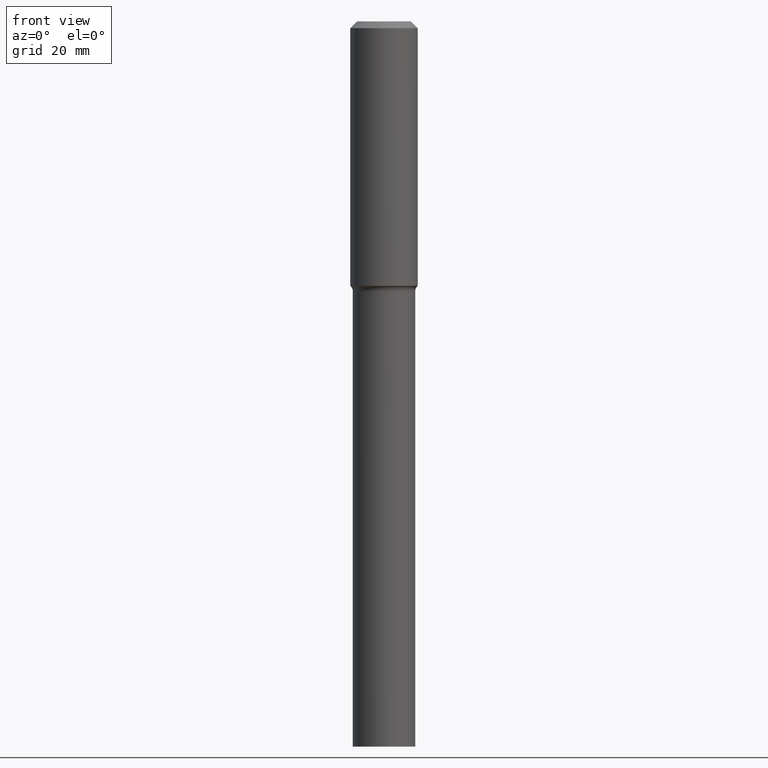
[diagram: clean part render]
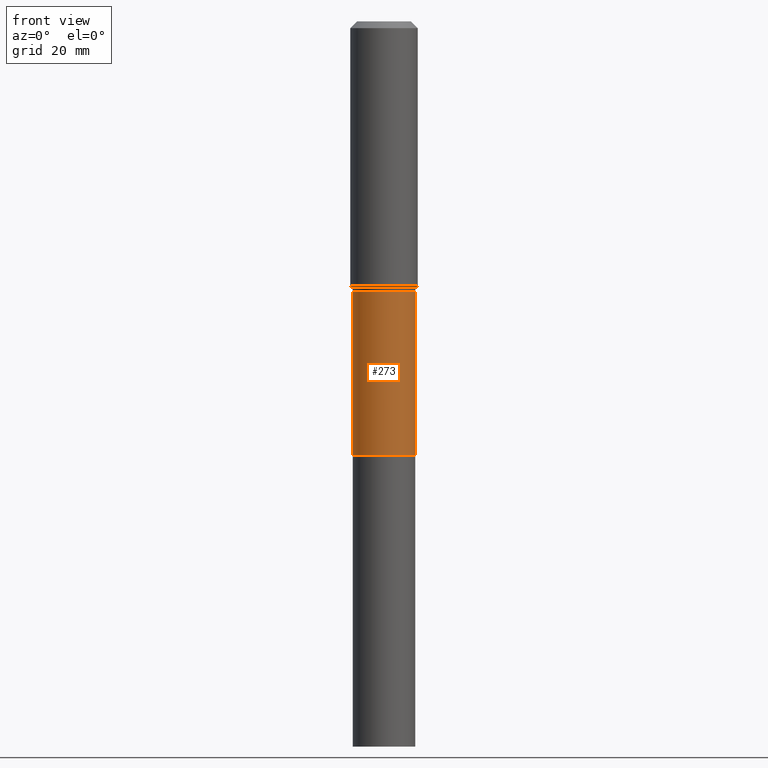
[diagram: same view with one face highlighted and labeled with its STEP entity id]
A machine part, front view. The second image highlights one B-rep face of the part: STEP entity #273.
In plain terms, the highlighted cylindrical surface (edge-blend (fillet) strip) has radius 9.2494 mm, axis along (-0, 0, 1).
Its self-contained STEP definition (entity closure, byte-faithful):
#4 = CARTESIAN_POINT ( 'NONE',  ( 0.3641499999999998072, -1.353961548389982670E-14, -3.149600000000000843 ) ) ;
#19 = DIRECTION ( 'NONE',  ( -2.445468806185136597E-29, 3.491481338843145583E-15, 1.000000000000000000 ) ) ;
#22 = CARTESIAN_POINT ( 'NONE',  ( 0.3641499999999999737, -2.022754798845387430E-14, -5.065100000000001934 ) ) ;
#25 = DIRECTION ( 'NONE',  ( 1.000000000000000000, -6.982962677686266711E-15, 0.000000000000000000 ) ) ;
#32 = VECTOR ( 'NONE', #143, 39.37007874015748143 ) ;
#37 = EDGE_CURVE ( 'NONE', #364, #171, #167, .T. ) ;
#40 = EDGE_CURVE ( 'NONE', #57, #364, #213, .T. ) ;
#45 = ORIENTED_EDGE ( 'NONE', *, *, #37, .F. ) ;
#57 = VERTEX_POINT ( 'NONE', #94 ) ;
#67 = CARTESIAN_POINT ( 'NONE',  ( 0.000000000000000000, 0.000000000000000000, 0.000000000000000000 ) ) ;
#78 = AXIS2_PLACEMENT_3D ( 'NONE', #67, #383, #188 ) ;
#94 = CARTESIAN_POINT ( 'NONE',  ( -0.3641499999999999737, -1.175329450482699147E-14, -5.065100000000001934 ) ) ;
#115 = DIRECTION ( 'NONE',  ( 1.000000000000000000, -6.982962677686263555E-15, 0.000000000000000000 ) ) ;
#120 = CIRCLE ( 'NONE', #357, 0.3641499999999999737 ) ;
#136 = CARTESIAN_POINT ( 'NONE',  ( -0.3641499999999998627, 2.587441372270403851E-15, -1.791230213116323002E-29 ) ) ;
#143 = DIRECTION ( 'NONE',  ( -2.445468806185136877E-29, 3.491481338843145188E-15, 1.000000000000000000 ) ) ;
#159 = CARTESIAN_POINT ( 'NONE',  ( 1.238654405020833793E-28, -1.768470212937442148E-14, -5.065100000000001934 ) ) ;
#167 = CIRCLE ( 'NONE', #358, 0.3641499999999998072 ) ;
#171 = VERTEX_POINT ( 'NONE', #4 ) ;
#184 = FACE_OUTER_BOUND ( 'NONE', #255, .T. ) ;
#188 = DIRECTION ( 'NONE',  ( 1.000000000000000000, -6.982962677686265922E-15, 4.876176775795935232E-29 ) ) ;
#202 = ORIENTED_EDGE ( 'NONE', *, *, #517, .T. ) ;
#213 = LINE ( 'NONE', #136, #32 ) ;
#248 = VERTEX_POINT ( 'NONE', #22 ) ;
#255 = EDGE_LOOP ( 'NONE', ( #421, #202, #301, #45 ) ) ;
#266 = VECTOR ( 'NONE', #507, 39.37007874015748143 ) ;
#267 = CARTESIAN_POINT ( 'NONE',  ( -0.3641499999999998072, -1.175329450482699304E-14, -3.149600000000000843 ) ) ;
#270 = CYLINDRICAL_SURFACE ( 'NONE', #78, 0.3641499999999998627 ) ;
#273 = ADVANCED_FACE ( 'NONE', ( #184 ), #270, .T. ) ;
#301 = ORIENTED_EDGE ( 'NONE', *, *, #313, .T. ) ;
#313 = EDGE_CURVE ( 'NONE', #248, #171, #394, .T. ) ;
#339 = CARTESIAN_POINT ( 'NONE',  ( 0.3641499999999998627, -2.542845859079452817E-15, 1.775659772906089126E-29 ) ) ;
#341 = CARTESIAN_POINT ( 'NONE',  ( 7.702248551960707832E-29, -1.099676962482037389E-14, -3.149600000000000843 ) ) ;
#357 = AXIS2_PLACEMENT_3D ( 'NONE', #159, #488, #115 ) ;
#358 = AXIS2_PLACEMENT_3D ( 'NONE', #341, #19, #25 ) ;
#364 = VERTEX_POINT ( 'NONE', #267 ) ;
#383 = DIRECTION ( 'NONE',  ( -2.445468806185136597E-29, 3.491481338843145583E-15, 1.000000000000000000 ) ) ;
#394 = LINE ( 'NONE', #339, #266 ) ;
#421 = ORIENTED_EDGE ( 'NONE', *, *, #40, .F. ) ;
#488 = DIRECTION ( 'NONE',  ( -2.445468806185136597E-29, 3.491481338843145583E-15, 1.000000000000000000 ) ) ;
#507 = DIRECTION ( 'NONE',  ( -2.445468806185136877E-29, 3.491481338843145188E-15, 1.000000000000000000 ) ) ;
#517 = EDGE_CURVE ( 'NONE', #57, #248, #120, .T. ) ;